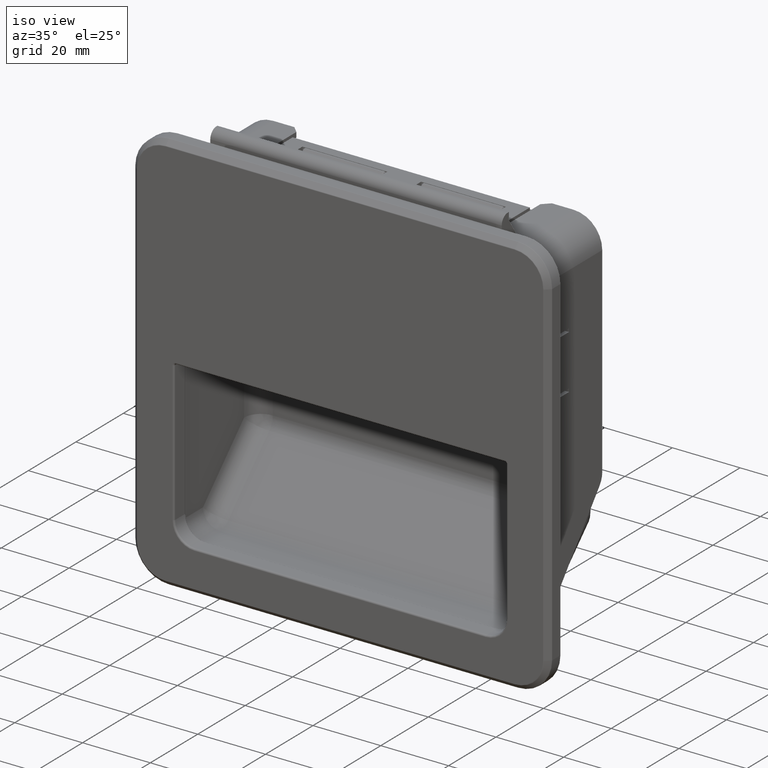
[diagram: clean part render]
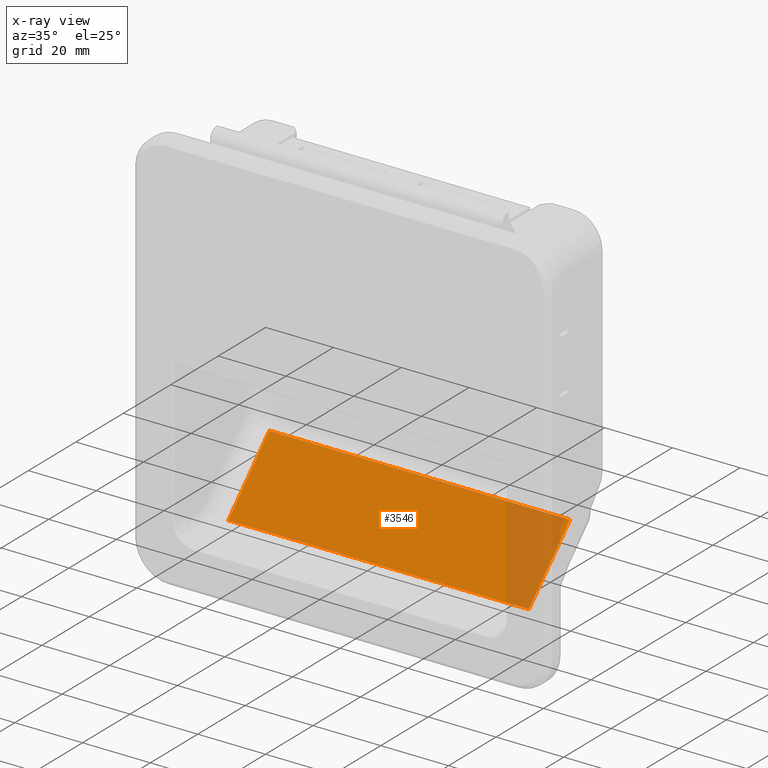
[diagram: x-ray — body ghosted, one internal face saturated and labeled with its STEP entity id]
A machine part, iso view, then the same camera in x-ray: the body is ghosted and one INTERNAL B-rep face — a face not visible from any outside direction — is saturated and labeled: STEP entity #3546.
In plain terms, the highlighted planar face has unit normal (0, 0.7071, -0.7071).
Its self-contained STEP definition (entity closure, byte-faithful):
#1347 = DIRECTION ( 'NONE',  ( 1.000000000000000000, 0.0000000000000000000, -0.0000000000000000000 ) ) ;
#1518 = VERTEX_POINT ( 'NONE', #19735 ) ;
#2483 = EDGE_CURVE ( 'NONE', #12816, #9215, #15791, .T. ) ;
#3546 = ADVANCED_FACE ( 'NONE', ( #18175 ), #38852, .F. ) ;
#3906 = VECTOR ( 'NONE', #21166, 1000.000000000000000 ) ;
#4827 = VECTOR ( 'NONE', #19749, 1000.000000000000100 ) ;
#5007 = EDGE_LOOP ( 'NONE', ( #23649, #29147, #10587, #15262 ) ) ;
#8681 = EDGE_CURVE ( 'NONE', #24378, #12816, #38654, .T. ) ;
#9215 = VERTEX_POINT ( 'NONE', #28887 ) ;
#10587 = ORIENTED_EDGE ( 'NONE', *, *, #8681, .T. ) ;
#12136 = EDGE_CURVE ( 'NONE', #9215, #1518, #13450, .T. ) ;
#12816 = VERTEX_POINT ( 'NONE', #15341 ) ;
#12898 = VECTOR ( 'NONE', #28226, 1000.000000000000100 ) ;
#13154 = DIRECTION ( 'NONE',  ( 0.0000000000000000000, 0.7071067811865475700, -0.7071067811865475700 ) ) ;
#13450 = LINE ( 'NONE', #38065, #4827 ) ;
#15262 = ORIENTED_EDGE ( 'NONE', *, *, #2483, .T. ) ;
#15341 = CARTESIAN_POINT ( 'NONE',  ( -44.35000000000000100, 16.23603896937874000, -46.63365490438673100 ) ) ;
#15791 = LINE ( 'NONE', #20741, #40564 ) ;
#17746 = EDGE_CURVE ( 'NONE', #24378, #1518, #21135, .T. ) ;
#17921 = CARTESIAN_POINT ( 'NONE',  ( -53.22000000000000600, 33.53553390955000400, -29.33415997144999900 ) ) ;
#18175 = FACE_OUTER_BOUND ( 'NONE', #5007, .T. ) ;
#19735 = CARTESIAN_POINT ( 'NONE',  ( 44.35000000000002300, 33.53553390653561900, -29.33415996843561000 ) ) ;
#19749 = DIRECTION ( 'NONE',  ( -0.0000000000000000000, 0.7071067811865474600, 0.7071067811865474600 ) ) ;
#20741 = CARTESIAN_POINT ( 'NONE',  ( 0.0000000000000000000, 16.23603896933274300, -46.63365490443273100 ) ) ;
#21135 = LINE ( 'NONE', #17921, #3906 ) ;
#21166 = DIRECTION ( 'NONE',  ( 1.000000000000000000, -0.0000000000000000000, 0.0000000000000000000 ) ) ;
#21712 = CARTESIAN_POINT ( 'NONE',  ( -44.35000000000000100, 24.88578635453274000, -37.98390751923273700 ) ) ;
#22225 = AXIS2_PLACEMENT_3D ( 'NONE', #32568, #13154, #35791 ) ;
#23649 = ORIENTED_EDGE ( 'NONE', *, *, #12136, .T. ) ;
#24378 = VERTEX_POINT ( 'NONE', #28341 ) ;
#28226 = DIRECTION ( 'NONE',  ( 0.0000000000000000000, -0.7071067811865474600, -0.7071067811865474600 ) ) ;
#28341 = CARTESIAN_POINT ( 'NONE',  ( -44.35000000000000100, 33.53553390653561200, -29.33415996843561000 ) ) ;
#28887 = CARTESIAN_POINT ( 'NONE',  ( 44.35000000000000100, 16.23603896933274300, -46.63365490443273100 ) ) ;
#29147 = ORIENTED_EDGE ( 'NONE', *, *, #17746, .F. ) ;
#32568 = CARTESIAN_POINT ( 'NONE',  ( -53.22000000000000600, 14.50608947930000000, -48.36360440170000200 ) ) ;
#35791 = DIRECTION ( 'NONE',  ( 0.0000000000000000000, 0.7071067811865474600, 0.7071067811865474600 ) ) ;
#38065 = CARTESIAN_POINT ( 'NONE',  ( 44.35000000000000100, 24.88578635453274000, -37.98390751923273700 ) ) ;
#38654 = LINE ( 'NONE', #21712, #12898 ) ;
#38852 = PLANE ( 'NONE',  #22225 ) ;
#40564 = VECTOR ( 'NONE', #1347, 1000.000000000000000 ) ;